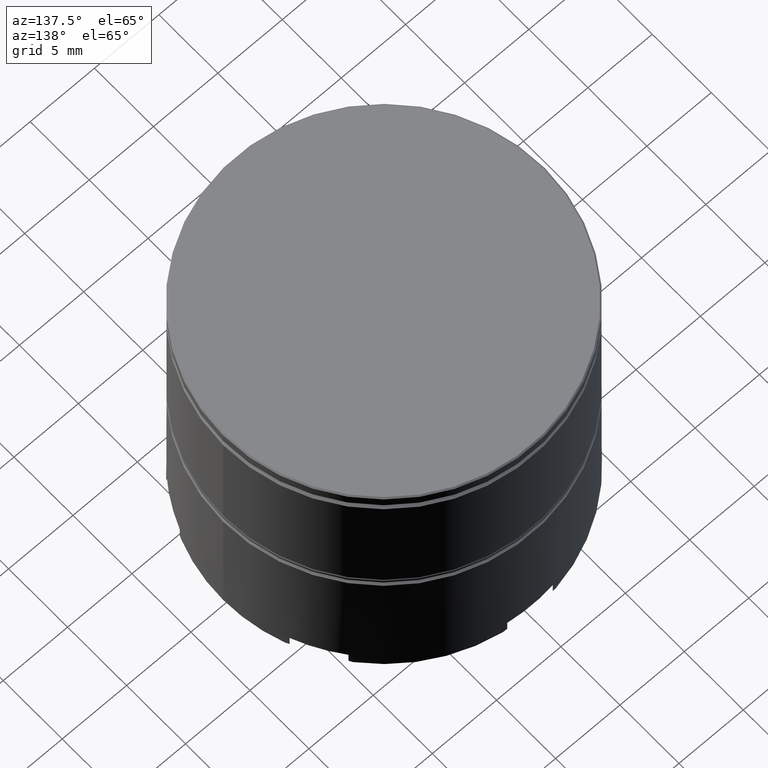
[diagram: clean part render]
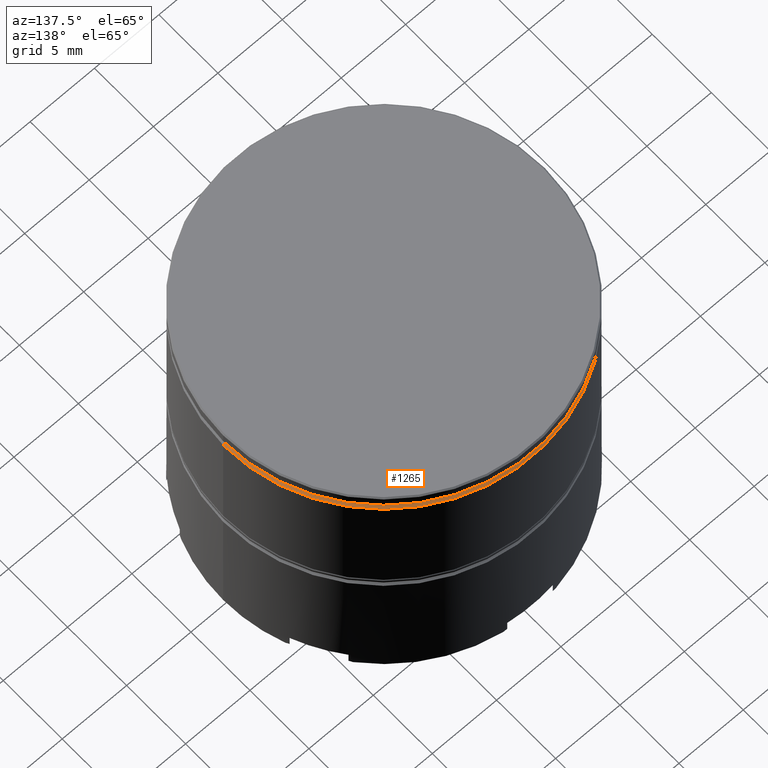
[diagram: same view with one face highlighted and labeled with its STEP entity id]
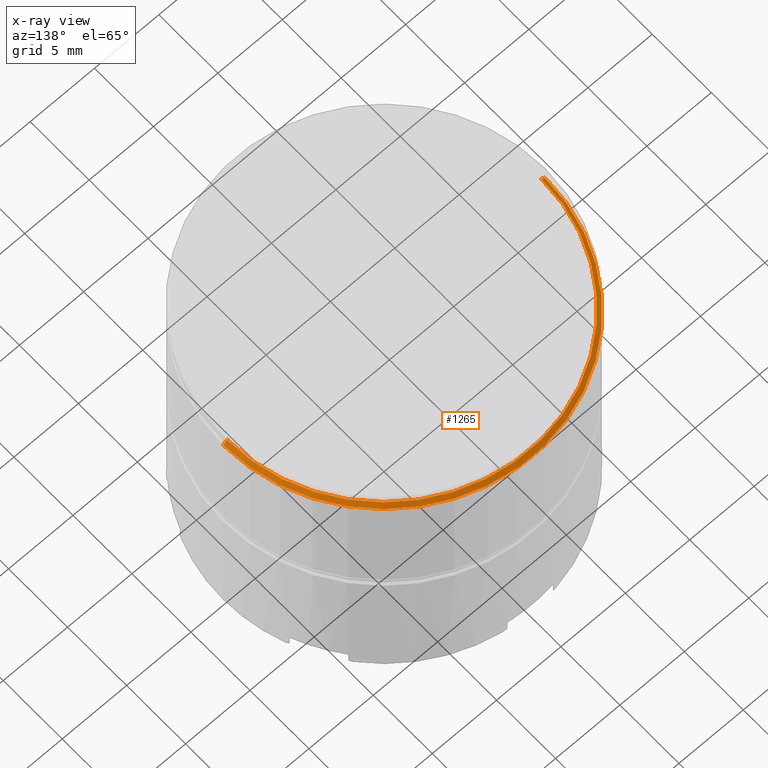
[diagram: x-ray of the same camera — body ghosted, the highlighted face saturated]
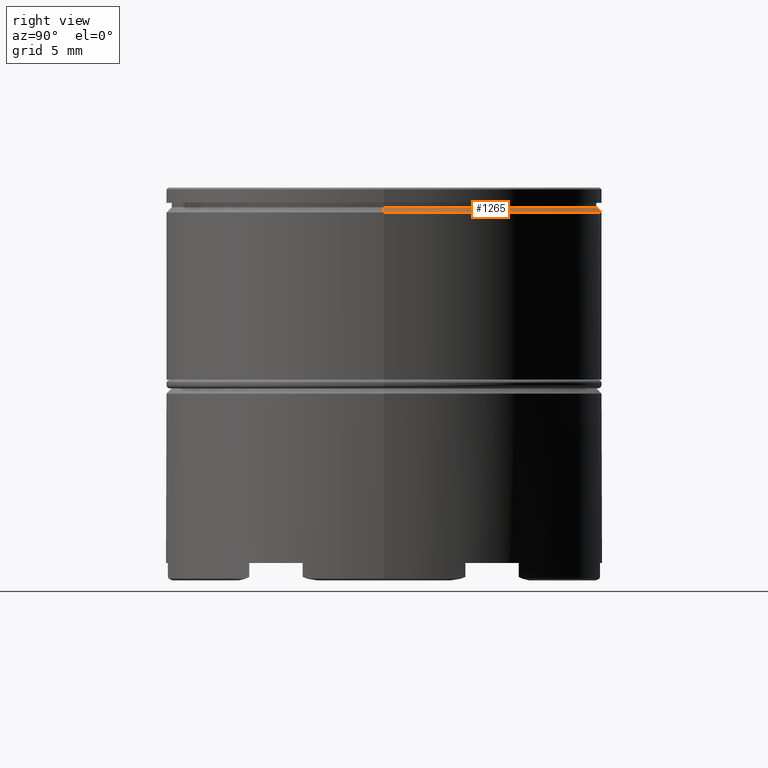
[diagram: same view with one face highlighted and labeled with its STEP entity id]
A machine part, auxiliary view. The second image highlights one B-rep face of the part: STEP entity #1265.
The next image is the same camera in x-ray: the body ghosted, the highlighted face saturated — about 0% of this face is hidden behind the body in this view.
A second angle (right view) of the same face is appended — the face is thin or edge-on in the first view.
In plain terms, the highlighted conical surface has half-angle 45 deg.
Its self-contained STEP definition (entity closure, byte-faithful):
#15 = DIRECTION ( 'NONE',  ( 0.000000000000000000, 0.000000000000000000, -1.000000000000000000 ) ) ;
#59 = CARTESIAN_POINT ( 'NONE',  ( -12.20000000000000107, 1.494069094959771056E-15, -1.125000000000000222 ) ) ;
#63 = VERTEX_POINT ( 'NONE', #59 ) ;
#234 = DIRECTION ( 'NONE',  ( 0.000000000000000000, 0.000000000000000000, -1.000000000000000000 ) ) ;
#269 = ORIENTED_EDGE ( 'NONE', *, *, #715, .F. ) ;
#302 = LINE ( 'NONE', #555, #1166 ) ;
#304 = ORIENTED_EDGE ( 'NONE', *, *, #545, .F. ) ;
#311 = ORIENTED_EDGE ( 'NONE', *, *, #422, .F. ) ;
#389 = DIRECTION ( 'NONE',  ( -0.000000000000000000, -0.000000000000000000, 1.000000000000000000 ) ) ;
#415 = CARTESIAN_POINT ( 'NONE',  ( 0.000000000000000000, 0.000000000000000000, -1.125000000000000222 ) ) ;
#422 = EDGE_CURVE ( 'NONE', #1334, #1318, #1587, .T. ) ;
#538 = DIRECTION ( 'NONE',  ( 1.000000000000000000, 0.000000000000000000, 0.000000000000000000 ) ) ;
#543 = DIRECTION ( 'NONE',  ( 1.000000000000000000, 0.000000000000000000, 0.000000000000000000 ) ) ;
#545 = EDGE_CURVE ( 'NONE', #63, #1334, #926, .T. ) ;
#548 = DIRECTION ( 'NONE',  ( 0.7071067811865454633, 8.659560562354908206E-17, -0.7071067811865495711 ) ) ;
#555 = CARTESIAN_POINT ( 'NONE',  ( 12.19999999999999218, 1.494069094959770070E-15, -1.125000000000000222 ) ) ;
#646 = CARTESIAN_POINT ( 'NONE',  ( 0.000000000000000000, 0.000000000000000000, -1.125000000000000222 ) ) ;
#657 = CONICAL_SURFACE ( 'NONE', #1067, 12.19999999999999218, 0.7853981633974453924 ) ;
#660 = CARTESIAN_POINT ( 'NONE',  ( 0.000000000000000000, 0.000000000000000000, -1.425000000000010481 ) ) ;
#715 = EDGE_CURVE ( 'NONE', #1622, #63, #1372, .T. ) ;
#792 = FACE_OUTER_BOUND ( 'NONE', #1381, .T. ) ;
#803 = DIRECTION ( 'NONE',  ( -0.7071067811865454633, 0.000000000000000000, -0.7071067811865495711 ) ) ;
#807 = AXIS2_PLACEMENT_3D ( 'NONE', #646, #389, #543 ) ;
#926 = LINE ( 'NONE', #1323, #1479 ) ;
#1067 = AXIS2_PLACEMENT_3D ( 'NONE', #415, #234, #1247 ) ;
#1077 = CARTESIAN_POINT ( 'NONE',  ( -12.50000000000000000, 1.530808498934191521E-15, -1.425000000000010481 ) ) ;
#1125 = ORIENTED_EDGE ( 'NONE', *, *, #1593, .T. ) ;
#1166 = VECTOR ( 'NONE', #548, 1000.000000000000000 ) ;
#1173 = CARTESIAN_POINT ( 'NONE',  ( 12.50000000000000000, 0.000000000000000000, -1.425000000000010481 ) ) ;
#1247 = DIRECTION ( 'NONE',  ( -1.000000000000000000, 0.000000000000000000, 0.000000000000000000 ) ) ;
#1265 = ADVANCED_FACE ( 'NONE', ( #792 ), #657, .T. ) ;
#1314 = AXIS2_PLACEMENT_3D ( 'NONE', #660, #15, #538 ) ;
#1318 = VERTEX_POINT ( 'NONE', #1173 ) ;
#1323 = CARTESIAN_POINT ( 'NONE',  ( -12.19999999999999218, 0.000000000000000000, -1.125000000000000222 ) ) ;
#1334 = VERTEX_POINT ( 'NONE', #1077 ) ;
#1372 = CIRCLE ( 'NONE', #807, 12.20000000000000107 ) ;
#1381 = EDGE_LOOP ( 'NONE', ( #269, #1125, #311, #304 ) ) ;
#1467 = CARTESIAN_POINT ( 'NONE',  ( 12.20000000000000107, 0.000000000000000000, -1.125000000000000222 ) ) ;
#1479 = VECTOR ( 'NONE', #803, 1000.000000000000000 ) ;
#1587 = CIRCLE ( 'NONE', #1314, 12.50000000000000000 ) ;
#1593 = EDGE_CURVE ( 'NONE', #1622, #1318, #302, .T. ) ;
#1622 = VERTEX_POINT ( 'NONE', #1467 ) ;